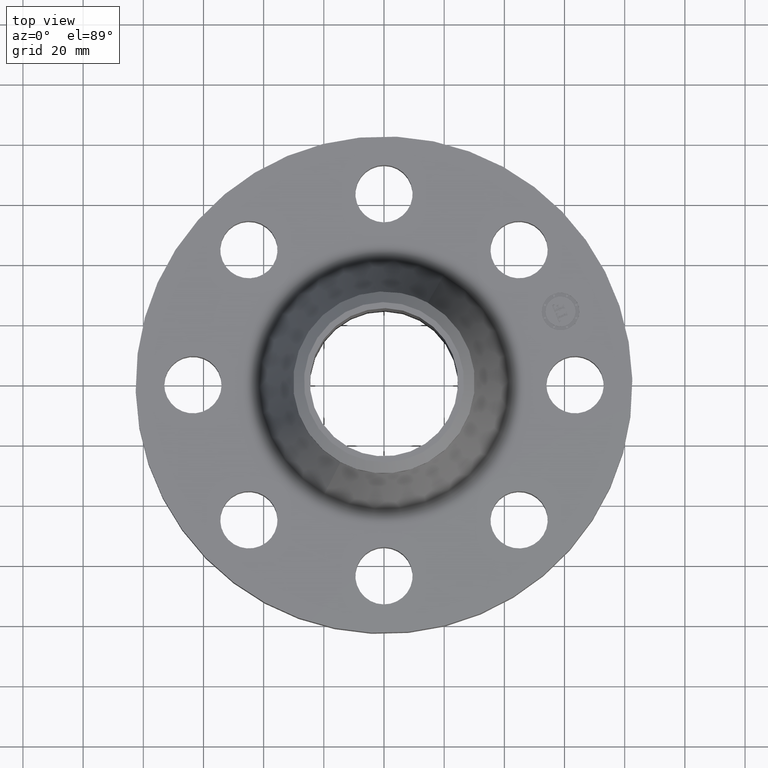
[diagram: clean part render]
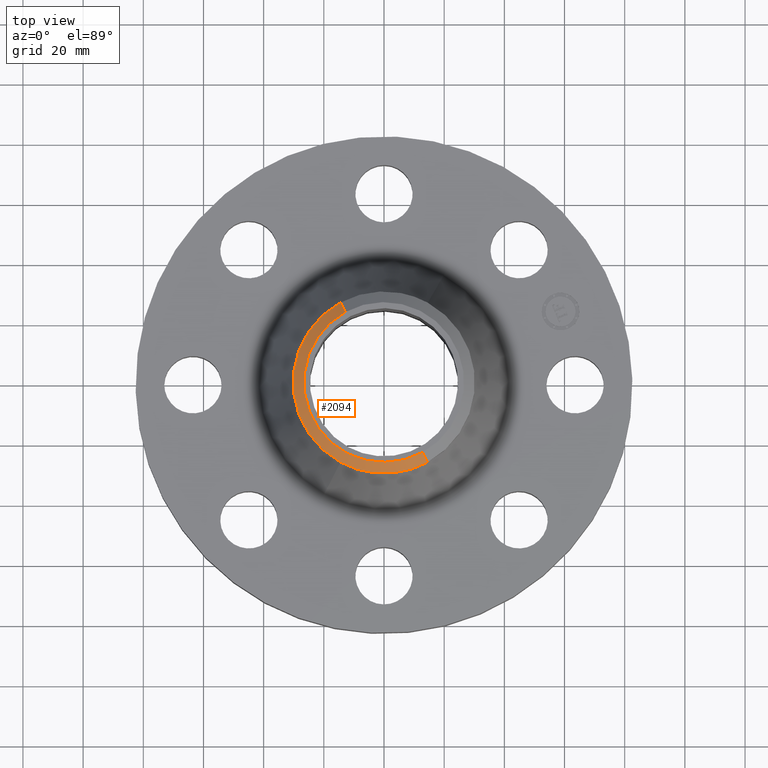
[diagram: same view with one face highlighted and labeled with its STEP entity id]
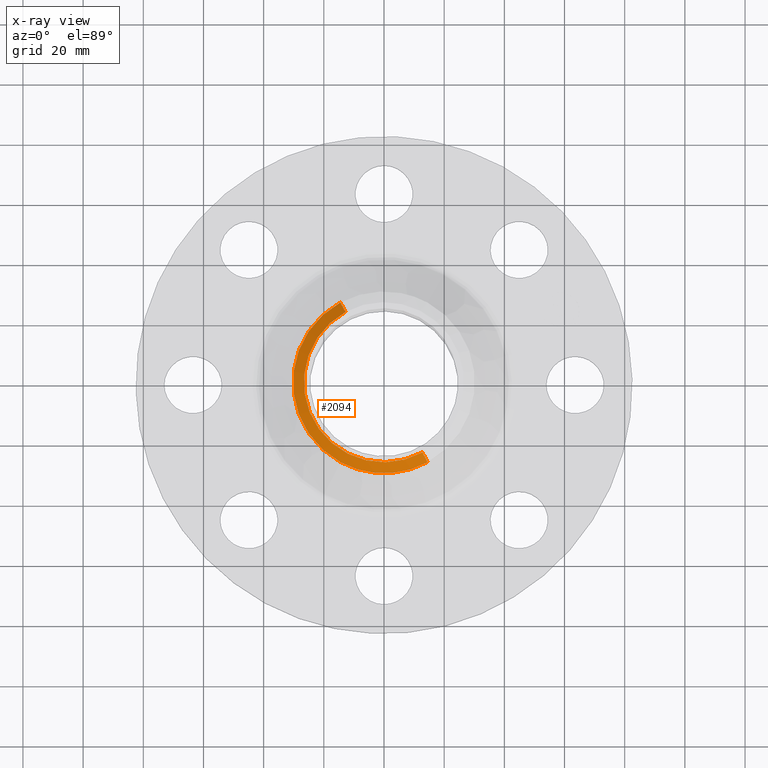
[diagram: x-ray of the same camera — body ghosted, the highlighted face saturated]
A machine part, top view. The second image highlights one B-rep face of the part: STEP entity #2094.
The next image is the same camera in x-ray: the body ghosted, the highlighted face saturated — about 0% of this face is hidden behind the body in this view.
In plain terms, the highlighted conical surface has half-angle 52.5 deg.
Its self-contained STEP definition (entity closure, byte-faithful):
#1394=AXIS2_PLACEMENT_3D('Circle Axis2P3D',#1392,#1393,$) ;
#1434=AXIS2_PLACEMENT_3D('Circle Axis2P3D',#1432,#1433,$) ;
#1476=AXIS2_PLACEMENT_3D('Circle Axis2P3D',#1474,#1475,$) ;
#2085=AXIS2_PLACEMENT_3D('Cone Axis2P3D',#2082,#2083,#2084) ;
#1387=CARTESIAN_POINT('Vertex',(0.502553102088,-0.91991728288,2.69000000001)) ;
#1389=CARTESIAN_POINT('Vertex',(-0.502553102087,0.919917282877,2.69000000001)) ;
#1392=CARTESIAN_POINT('Axis2P3D Location',(-6.99353086378E-017,8.21306277581E-012,2.69000000001)) ;
#1429=CARTESIAN_POINT('Vertex',(-0.570516390939,-1.04432324865,2.58122384701)) ;
#1432=CARTESIAN_POINT('Axis2P3D Location',(0.,0.,2.58122384701)) ;
#1436=CARTESIAN_POINT('Vertex',(-0.57051639094,1.04432324865,2.58122384701)) ;
#1471=CARTESIAN_POINT('Vertex',(0.57051639094,-1.04432324865,2.58122384701)) ;
#1474=CARTESIAN_POINT('Axis2P3D Location',(0.,0.,2.58122384701)) ;
#2057=CARTESIAN_POINT('Line Origine',(-0.536534746514,0.982120265764,2.63561192352)) ;
#2062=CARTESIAN_POINT('Line Origine',(0.536534746514,-0.982120265764,2.63561192352)) ;
#2082=CARTESIAN_POINT('Axis2P3D Location',(0.,0.,2.69000000001)) ;
#1393=DIRECTION('Axis2P3D Direction',(0.,0.,-0.0393700787402)) ;
#1433=DIRECTION('Axis2P3D Direction',(-0.,0.,-0.0393700787402)) ;
#1475=DIRECTION('Axis2P3D Direction',(-0.,0.,-0.0393700787402)) ;
#2058=DIRECTION('Vector Direction',(-0.014974561121,0.02741075027,-0.023966985394)) ;
#2063=DIRECTION('Vector Direction',(0.014974561121,-0.02741075027,-0.023966985394)) ;
#2083=DIRECTION('Axis2P3D Direction',(-0.,-0.,-0.0393700787402)) ;
#2084=DIRECTION('Axis2P3D XDirection',(0.0188750212049,-0.0345504945626,0.)) ;
#2059=VECTOR('Line Direction',#2058,0.0393700787402) ;
#2064=VECTOR('Line Direction',#2063,0.0393700787402) ;
#2088=ORIENTED_EDGE('',*,*,#2066,.F.) ;
#2089=ORIENTED_EDGE('',*,*,#1396,.F.) ;
#2090=ORIENTED_EDGE('',*,*,#2061,.T.) ;
#2091=ORIENTED_EDGE('',*,*,#1438,.T.) ;
#2092=ORIENTED_EDGE('',*,*,#1478,.F.) ;
#2094=ADVANCED_FACE('PartBody',(#2093),#2086,.T.) ;
#1395=CIRCLE('generated circle',#1394,1.04824015749) ;
#1435=CIRCLE('generated circle',#1434,1.19) ;
#1477=CIRCLE('generated circle',#1476,1.19) ;
#2086=CONICAL_SURFACE('Cone',#2085,1.04824015748,0.916297857297) ;
#1396=EDGE_CURVE('',#1390,#1388,#1395,.F.) ;
#1438=EDGE_CURVE('',#1437,#1430,#1435,.F.) ;
#1478=EDGE_CURVE('',#1472,#1430,#1477,.T.) ;
#2061=EDGE_CURVE('',#1390,#1437,#2060,.T.) ;
#2066=EDGE_CURVE('',#1388,#1472,#2065,.T.) ;
#2087=EDGE_LOOP('',(#2088,#2089,#2090,#2091,#2092)) ;
#2093=FACE_OUTER_BOUND('',#2087,.T.) ;
#2060=LINE('Line',#2057,#2059) ;
#2065=LINE('Line',#2062,#2064) ;
#1388=VERTEX_POINT('',#1387) ;
#1390=VERTEX_POINT('',#1389) ;
#1430=VERTEX_POINT('',#1429) ;
#1437=VERTEX_POINT('',#1436) ;
#1472=VERTEX_POINT('',#1471) ;